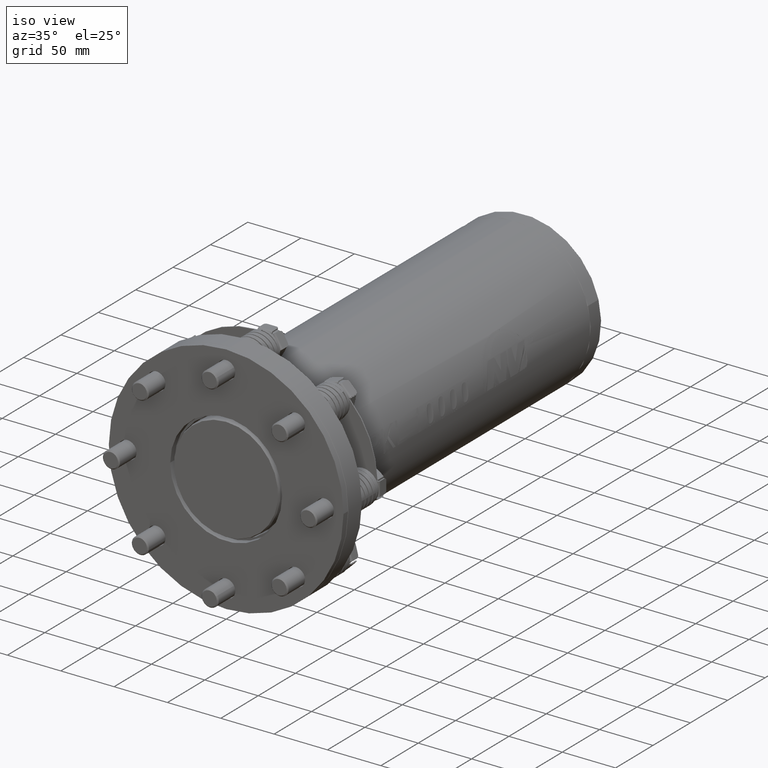
[diagram: clean part render]
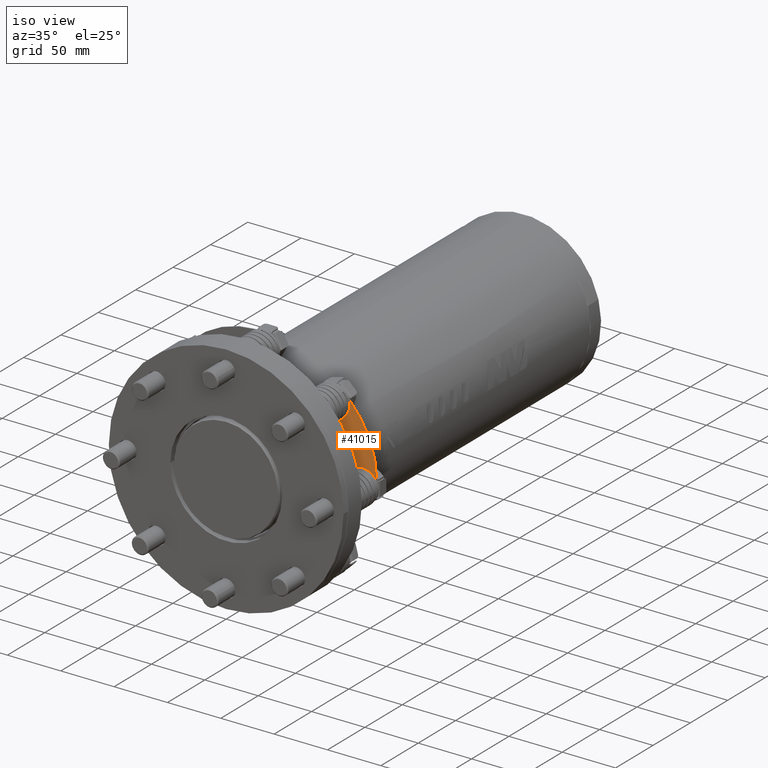
[diagram: same view with one face highlighted and labeled with its STEP entity id]
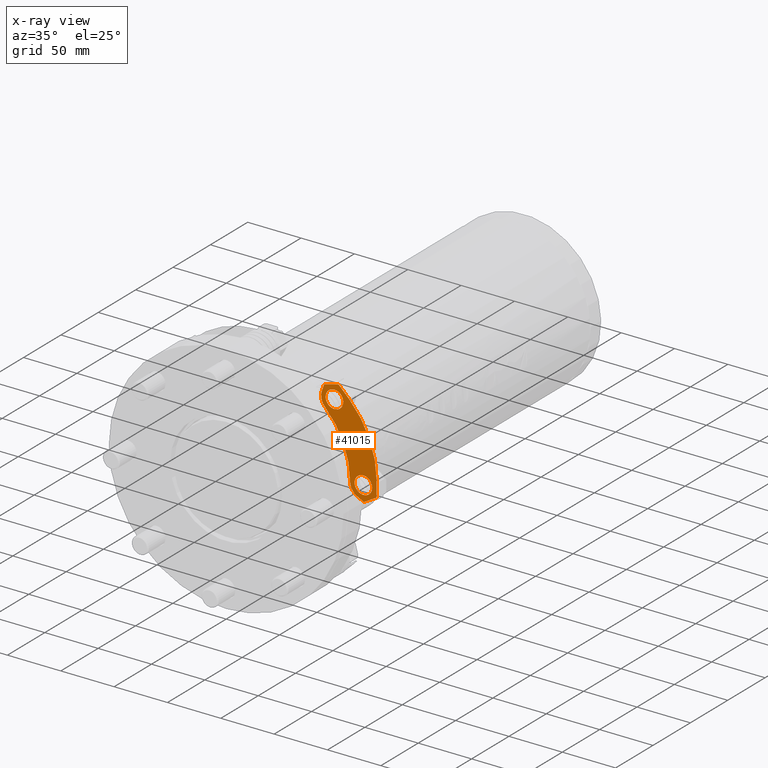
[diagram: x-ray of the same camera — body ghosted, the highlighted face saturated]
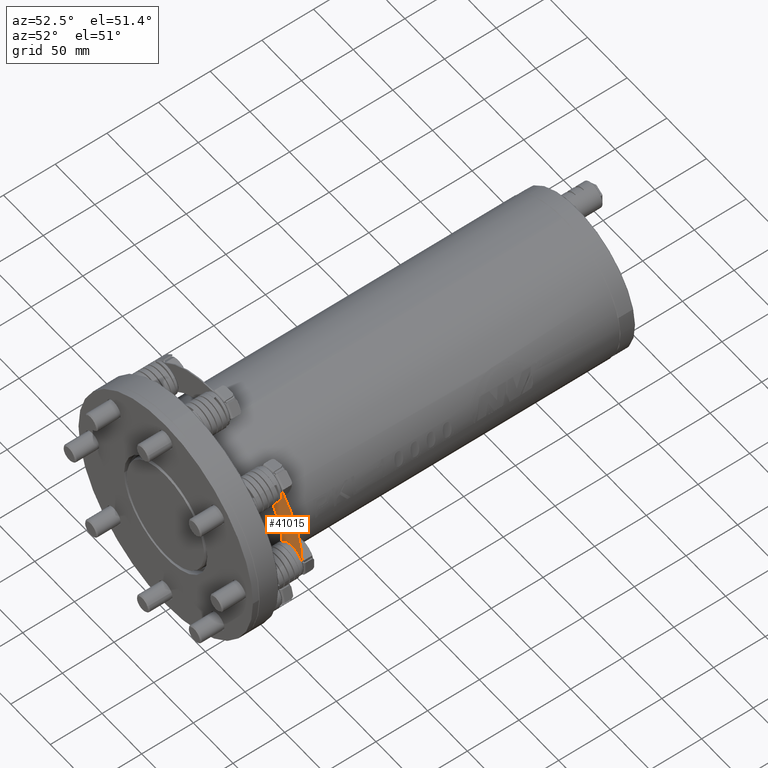
[diagram: same view with one face highlighted and labeled with its STEP entity id]
A machine part, iso view. The second image highlights one B-rep face of the part: STEP entity #41015.
The next image is the same camera in x-ray: the body ghosted, the highlighted face saturated — about 0% of this face is hidden behind the body in this view.
A second angle (auxiliary view) of the same face is appended — the face is thin or edge-on in the first view.
In plain terms, the highlighted planar face has unit normal (-0, 1, -0).
Its self-contained STEP definition (entity closure, byte-faithful):
#178 = DIRECTION ( 'NONE',  ( -2.311591932277384700E-017, 1.000000000000000000, -2.154749824397584800E-017 ) ) ;
#179 = DIRECTION ( 'NONE',  ( 0.3826834323650836800, 0.0000000000000000000, -0.9238795325112892900 ) ) ;
#204 = CARTESIAN_POINT ( 'NONE',  ( 54.71367201384040200, 51.50000000000000000, 75.79995860556410000 ) ) ;
#206 = CARTESIAN_POINT ( 'NONE',  ( 55.75884753398519700, 51.50000000000000000, 75.76301376671271700 ) ) ;
#280 = DIRECTION ( 'NONE',  ( -2.311591932277384700E-017, 1.000000000000000000, -2.154749824397584800E-017 ) ) ;
#281 = DIRECTION ( 'NONE',  ( 0.3826834323650863400, 0.0000000000000000000, -0.9238795325112881800 ) ) ;
#284 = CARTESIAN_POINT ( 'NONE',  ( 65.40737725975630200, 51.50000000000000000, 65.40737725975429800 ) ) ;
#295 = DIRECTION ( 'NONE',  ( 0.3263749025326389000, 2.791202187997129000E-017, 0.9452404048689466700 ) ) ;
#303 = CARTESIAN_POINT ( 'NONE',  ( -1.011360499757567900E-014, 51.50000000000000000, -6.745783992307669900E-013 ) ) ;
#306 = DIRECTION ( 'NONE',  ( -0.8991678069242737800, -1.135581920435109600E-017, 0.4376039933444299000 ) ) ;
#310 = CARTESIAN_POINT ( 'NONE',  ( 93.00000000000000000, 51.50000000000000000, -14.14508159514650000 ) ) ;
#315 = DIRECTION ( 'NONE',  ( 0.3826834323650861700, 0.0000000000000000000, -0.9238795325112884000 ) ) ;
#316 = DIRECTION ( 'NONE',  ( 2.311591932277384700E-017, -1.000000000000000000, 2.154749824397584800E-017 ) ) ;
#317 = CARTESIAN_POINT ( 'NONE',  ( 92.28707324825749900, 51.50000000000000000, -14.91025623905273900 ) ) ;
#326 = DIRECTION ( 'NONE',  ( -2.311591932277384700E-017, 1.000000000000000000, -2.154749824397584800E-017 ) ) ;
#328 = DIRECTION ( 'NONE',  ( 0.3826834323650836800, 0.0000000000000000000, -0.9238795325112892900 ) ) ;
#450 = DIRECTION ( 'NONE',  ( -0.3826834323650863400, 0.0000000000000000000, 0.9238795325112881800 ) ) ;
#451 = DIRECTION ( 'NONE',  ( -2.311591932277384700E-017, 1.000000000000000000, -2.154749824397584800E-017 ) ) ;
#452 = CARTESIAN_POINT ( 'NONE',  ( 92.50000000000000000, 51.50000000000000000, -4.594726882096430100E-013 ) ) ;
#527 = CARTESIAN_POINT ( 'NONE',  ( 65.40737725975630200, 51.50000000000000000, 65.40737725975429800 ) ) ;
#528 = DIRECTION ( 'NONE',  ( -2.311591932277384700E-017, 1.000000000000000000, -2.154749824397584800E-017 ) ) ;
#529 = DIRECTION ( 'NONE',  ( 0.3826834323650864000, 0.0000000000000000000, -0.9238795325112880700 ) ) ;
#6422 = AXIS2_PLACEMENT_3D ( 'NONE', #56658, #56659, #56660 ) ;
#6584 = AXIS2_PLACEMENT_3D ( 'NONE', #19920, #19934, #19935 ) ;
#6613 = AXIS2_PLACEMENT_3D ( 'NONE', #20233, #20241, #20243 ) ;
#6615 = AXIS2_PLACEMENT_3D ( 'NONE', #20270, #20279, #20281 ) ;
#6679 = AXIS2_PLACEMENT_3D ( 'NONE', #63565, #63573, #63574 ) ;
#6683 = AXIS2_PLACEMENT_3D ( 'NONE', #63572, #63580, #63581 ) ;
#12380 = CARTESIAN_POINT ( 'NONE',  ( 78.94106736492270200, 51.50000000000000000, 69.55135668425160100 ) ) ;
#12381 = DIRECTION ( 'NONE',  ( 0.7071067811865400200, 1.109041180573680000E-018, -0.7071067811865550100 ) ) ;
#12989 = CARTESIAN_POINT ( 'NONE',  ( 92.50000000000000000, 51.50000000000000000, -4.594726882096430100E-013 ) ) ;
#13058 = CARTESIAN_POINT ( 'NONE',  ( 105.9944424673496000, 51.50000000000000000, 7.639528095680289800 ) ) ;
#13067 = CARTESIAN_POINT ( 'NONE',  ( 105.0000000000000000, 51.50000000000000000, 6.639528095680269400 ) ) ;
#13069 = DIRECTION ( 'NONE',  ( 0.3826834323650836800, 0.0000000000000000000, -0.9238795325112892900 ) ) ;
#13070 = DIRECTION ( 'NONE',  ( -2.311591932277384700E-017, 1.000000000000000000, -2.154749824397584800E-017 ) ) ;
#13081 = DIRECTION ( 'NONE',  ( 2.331468351712830300E-015, -2.154749824397575000E-017, -1.000000000000000000 ) ) ;
#13095 = CARTESIAN_POINT ( 'NONE',  ( 105.5000000000000000, 51.50000000000000000, -7.505553499465619900 ) ) ;
#13106 = CARTESIAN_POINT ( 'NONE',  ( 104.5000000000000000, 51.50000000000000000, -7.505553499466000000 ) ) ;
#13122 = DIRECTION ( 'NONE',  ( -0.8660254037844383700, -3.079272248734171600E-017, -0.5000000000000003300 ) ) ;
#13125 = DIRECTION ( 'NONE',  ( 0.9659258262890709800, 2.790516639213569600E-017, 0.2588190451025105300 ) ) ;
#13126 = CARTESIAN_POINT ( 'NONE',  ( 68.58543085796449600, 51.50000000000000000, 79.19988641002331100 ) ) ;
#13136 = DIRECTION ( 'NONE',  ( 0.3826834323650836800, 0.0000000000000000000, -0.9238795325112892900 ) ) ;
#13137 = DIRECTION ( 'NONE',  ( -2.311591932277384700E-017, 1.000000000000000000, -2.154749824397584800E-017 ) ) ;
#13235 = DIRECTION ( 'NONE',  ( -0.3826834323650864000, 0.0000000000000000000, 0.9238795325112881800 ) ) ;
#13237 = DIRECTION ( 'NONE',  ( -2.311591932277384700E-017, 1.000000000000000000, -2.154749824397584800E-017 ) ) ;
#17079 = CIRCLE ( 'NONE', #61874, 8.249999999999998200 ) ;
#17082 = VECTOR ( 'NONE', #13081, 1000.000000000000000 ) ;
#17086 = LINE ( 'NONE', #13067, #17082 ) ;
#17090 = LINE ( 'NONE', #13126, #17104 ) ;
#17092 = CIRCLE ( 'NONE', #61877, 0.9999999999999981100 ) ;
#17098 = VECTOR ( 'NONE', #13122, 1000.000000000000100 ) ;
#17104 = VECTOR ( 'NONE', #13125, 1000.000000000000200 ) ;
#17106 = LINE ( 'NONE', #13106, #17098 ) ;
#17127 = CIRCLE ( 'NONE', #61880, 0.9999999999999981100 ) ;
#17313 = LINE ( 'NONE', #12380, #17325 ) ;
#17325 = VECTOR ( 'NONE', #12381, 1000.000000000000000 ) ;
#18284 = EDGE_CURVE ( 'NONE', #50345, #50361, #69263, .T. ) ;
#18293 = EDGE_CURVE ( 'NONE', #50359, #50350, #69267, .T. ) ;
#18300 = EDGE_CURVE ( 'NONE', #50350, #50361, #69268, .T. ) ;
#18315 = EDGE_CURVE ( 'NONE', #50357, #50359, #69302, .T. ) ;
#18323 = EDGE_CURVE ( 'NONE', #50364, #50352, #69298, .T. ) ;
#18328 = EDGE_CURVE ( 'NONE', #50364, #50415, #69319, .T. ) ;
#18335 = EDGE_CURVE ( 'NONE', #50352, #50357, #69323, .T. ) ;
#18400 = EDGE_CURVE ( 'NONE', #50376, #50375, #69403, .T. ) ;
#19418 = EDGE_CURVE ( 'NONE', #50380, #50378, #17079, .T. ) ;
#19422 = EDGE_CURVE ( 'NONE', #50334, #50358, #17092, .T. ) ;
#19424 = EDGE_CURVE ( 'NONE', #50334, #50333, #17086, .T. ) ;
#19430 = EDGE_CURVE ( 'NONE', #50448, #50415, #17106, .T. ) ;
#19433 = EDGE_CURVE ( 'NONE', #50345, #50103, #17090, .T. ) ;
#19435 = EDGE_CURVE ( 'NONE', #50448, #50333, #17127, .T. ) ;
#19543 = EDGE_CURVE ( 'NONE', #50340, #50351, #17313, .T. ) ;
#19920 = CARTESIAN_POINT ( 'NONE',  ( 69.29253763915129100, 51.50000000000000000, 79.90699319120959400 ) ) ;
#19934 = DIRECTION ( 'NONE',  ( -2.311591932277384700E-017, 1.000000000000000000, -2.154749824397584800E-017 ) ) ;
#19935 = DIRECTION ( 'NONE',  ( 0.3826834323650836800, 0.0000000000000000000, -0.9238795325112892900 ) ) ;
#20233 = CARTESIAN_POINT ( 'NONE',  ( 80.35135115827199600, 51.50000000000000000, 69.54742691522780300 ) ) ;
#20241 = DIRECTION ( 'NONE',  ( -2.311591932277384700E-017, 1.000000000000000000, -2.154749824397584800E-017 ) ) ;
#20243 = DIRECTION ( 'NONE',  ( 0.3826834323650836800, 0.0000000000000000000, -0.9238795325112892900 ) ) ;
#20270 = CARTESIAN_POINT ( 'NONE',  ( 16.02923877634980000, 51.50000000000000000, 6.639528095680050000 ) ) ;
#20279 = DIRECTION ( 'NONE',  ( -2.311591932277384700E-017, 1.000000000000000000, -2.154749824397584800E-017 ) ) ;
#20281 = DIRECTION ( 'NONE',  ( 0.3826834323650861700, 0.0000000000000000000, -0.9238795325112884000 ) ) ;
#29029 = AXIS2_PLACEMENT_3D ( 'NONE', #452, #451, #450 ) ;
#29075 = AXIS2_PLACEMENT_3D ( 'NONE', #284, #280, #281 ) ;
#29087 = AXIS2_PLACEMENT_3D ( 'NONE', #317, #326, #328 ) ;
#29091 = AXIS2_PLACEMENT_3D ( 'NONE', #303, #316, #315 ) ;
#29103 = AXIS2_PLACEMENT_3D ( 'NONE', #204, #178, #179 ) ;
#32832 = EDGE_LOOP ( 'NONE', ( #38262, #38264 ) ) ;
#36630 = FACE_OUTER_BOUND ( 'NONE', #63142, .T. ) ;
#36632 = FACE_BOUND ( 'NONE', #32832, .T. ) ;
#36634 = FACE_BOUND ( 'NONE', #63141, .T. ) ;
#37560 = ORIENTED_EDGE ( 'NONE', *, *, #18328, .T. ) ;
#37563 = ORIENTED_EDGE ( 'NONE', *, *, #56138, .T. ) ;
#37565 = ORIENTED_EDGE ( 'NONE', *, *, #19422, .T. ) ;
#37567 = ORIENTED_EDGE ( 'NONE', *, *, #19424, .F. ) ;
#37569 = ORIENTED_EDGE ( 'NONE', *, *, #19435, .T. ) ;
#37571 = ORIENTED_EDGE ( 'NONE', *, *, #19430, .F. ) ;
#38168 = ORIENTED_EDGE ( 'NONE', *, *, #18335, .F. ) ;
#38170 = ORIENTED_EDGE ( 'NONE', *, *, #18315, .F. ) ;
#38172 = ORIENTED_EDGE ( 'NONE', *, *, #18300, .F. ) ;
#38174 = ORIENTED_EDGE ( 'NONE', *, *, #18293, .F. ) ;
#38177 = ORIENTED_EDGE ( 'NONE', *, *, #19433, .F. ) ;
#38179 = ORIENTED_EDGE ( 'NONE', *, *, #18284, .T. ) ;
#38188 = ORIENTED_EDGE ( 'NONE', *, *, #19543, .F. ) ;
#38262 = ORIENTED_EDGE ( 'NONE', *, *, #56130, .T. ) ;
#38264 = ORIENTED_EDGE ( 'NONE', *, *, #18400, .T. ) ;
#38266 = ORIENTED_EDGE ( 'NONE', *, *, #55695, .F. ) ;
#38268 = ORIENTED_EDGE ( 'NONE', *, *, #55683, .T. ) ;
#38270 = ORIENTED_EDGE ( 'NONE', *, *, #18323, .F. ) ;
#38273 = ORIENTED_EDGE ( 'NONE', *, *, #55585, .T. ) ;
#38279 = ORIENTED_EDGE ( 'NONE', *, *, #19418, .T. ) ;
#41015 = ADVANCED_FACE ( 'NONE', ( #36632, #36630, #36634 ), #56657, .F. ) ;
#50103 = VERTEX_POINT ( 'NONE', #72077 ) ;
#50333 = VERTEX_POINT ( 'NONE', #72525 ) ;
#50334 = VERTEX_POINT ( 'NONE', #72527 ) ;
#50340 = VERTEX_POINT ( 'NONE', #72539 ) ;
#50345 = VERTEX_POINT ( 'NONE', #72548 ) ;
#50347 = VERTEX_POINT ( 'NONE', #72552 ) ;
#50350 = VERTEX_POINT ( 'NONE', #72558 ) ;
#50351 = VERTEX_POINT ( 'NONE', #72560 ) ;
#50352 = VERTEX_POINT ( 'NONE', #72562 ) ;
#50357 = VERTEX_POINT ( 'NONE', #72572 ) ;
#50358 = VERTEX_POINT ( 'NONE', #72574 ) ;
#50359 = VERTEX_POINT ( 'NONE', #72576 ) ;
#50361 = VERTEX_POINT ( 'NONE', #72580 ) ;
#50364 = VERTEX_POINT ( 'NONE', #72586 ) ;
#50375 = VERTEX_POINT ( 'NONE', #72608 ) ;
#50376 = VERTEX_POINT ( 'NONE', #72610 ) ;
#50378 = VERTEX_POINT ( 'NONE', #72614 ) ;
#50380 = VERTEX_POINT ( 'NONE', #72618 ) ;
#50415 = VERTEX_POINT ( 'NONE', #72684 ) ;
#50448 = VERTEX_POINT ( 'NONE', #72748 ) ;
#53408 = AXIS2_PLACEMENT_3D ( 'NONE', #527, #528, #529 ) ;
#55585 = EDGE_CURVE ( 'NONE', #50340, #50103, #74462, .T. ) ;
#55683 = EDGE_CURVE ( 'NONE', #50347, #50351, #74539, .T. ) ;
#55695 = EDGE_CURVE ( 'NONE', #50347, #50358, #74543, .T. ) ;
#56130 = EDGE_CURVE ( 'NONE', #50375, #50376, #74745, .T. ) ;
#56138 = EDGE_CURVE ( 'NONE', #50378, #50380, #74749, .T. ) ;
#56657 = PLANE ( 'NONE',  #6422 ) ;
#56658 = CARTESIAN_POINT ( 'NONE',  ( 16.02923877634980000, 51.50000000000000000, 6.639528095680050000 ) ) ;
#56659 = DIRECTION ( 'NONE',  ( -2.311591932277385400E-017, 1.000000000000000000, -2.154749824397583300E-017 ) ) ;
#56660 = DIRECTION ( 'NONE',  ( 0.3826834323650861200, -1.106121325571868300E-017, -0.9238795325112882900 ) ) ;
#61874 = AXIS2_PLACEMENT_3D ( 'NONE', #12989, #13237, #13235 ) ;
#61877 = AXIS2_PLACEMENT_3D ( 'NONE', #13058, #13070, #13069 ) ;
#61880 = AXIS2_PLACEMENT_3D ( 'NONE', #13095, #13137, #13136 ) ;
#63141 = EDGE_LOOP ( 'NONE', ( #37563, #38279 ) ) ;
#63142 = EDGE_LOOP ( 'NONE', ( #38266, #38268, #38188, #38273, #38177, #38179, #38172, #38174, #38170, #38168, #38270, #37560, #37571, #37569, #37567, #37565 ) ) ;
#63565 = CARTESIAN_POINT ( 'NONE',  ( 65.40737725975630200, 51.50000000000000000, 65.40737725975429800 ) ) ;
#63572 = CARTESIAN_POINT ( 'NONE',  ( 92.50000000000000000, 51.50000000000000000, -4.594726882096430100E-013 ) ) ;
#63573 = DIRECTION ( 'NONE',  ( -2.311591932277384700E-017, 1.000000000000000000, -2.154749824397584800E-017 ) ) ;
#63574 = DIRECTION ( 'NONE',  ( 0.3826834323650864000, 0.0000000000000000000, -0.9238795325112880700 ) ) ;
#63580 = DIRECTION ( 'NONE',  ( -2.311591932277384700E-017, 1.000000000000000000, -2.154749824397584800E-017 ) ) ;
#63581 = DIRECTION ( 'NONE',  ( -0.3826834323650864000, 0.0000000000000000000, 0.9238795325112881800 ) ) ;
#69263 = CIRCLE ( 'NONE', #29103, 0.9999999999999981100 ) ;
#69267 = CIRCLE ( 'NONE', #29075, 12.49999999999999800 ) ;
#69268 = LINE ( 'NONE', #206, #69272 ) ;
#69272 = VECTOR ( 'NONE', #295, 1000.000000000000100 ) ;
#69298 = LINE ( 'NONE', #310, #69311 ) ;
#69302 = CIRCLE ( 'NONE', #29091, 79.99999999999997200 ) ;
#69311 = VECTOR ( 'NONE', #306, 1000.000000000000000 ) ;
#69319 = CIRCLE ( 'NONE', #29087, 0.9999999999999981100 ) ;
#69323 = CIRCLE ( 'NONE', #29029, 12.49999999999999800 ) ;
#69403 = CIRCLE ( 'NONE', #53408, 8.249999999999998200 ) ;
#72077 = CARTESIAN_POINT ( 'NONE',  ( 68.58543085796449600, 51.50000000000000000, 79.19988641002339600 ) ) ;
#72525 = CARTESIAN_POINT ( 'NONE',  ( 105.0000000000000000, 51.50000000000000000, -6.639528095681150400 ) ) ;
#72527 = CARTESIAN_POINT ( 'NONE',  ( 105.0000000000000000, 51.50000000000000000, 7.534246667423209600 ) ) ;
#72539 = CARTESIAN_POINT ( 'NONE',  ( 69.55135668425390300, 51.50000000000000000, 78.94106736492049900 ) ) ;
#72548 = CARTESIAN_POINT ( 'NONE',  ( 55.71245225468309300, 51.50000000000000000, 75.75058218909110500 ) ) ;
#72552 = CARTESIAN_POINT ( 'NONE',  ( 79.63642876007159500, 51.50000000000000000, 68.84822310763550500 ) ) ;
#72558 = CARTESIAN_POINT ( 'NONE',  ( 53.59187219889449900, 51.50000000000000000, 69.48706354141231100 ) ) ;
#72560 = CARTESIAN_POINT ( 'NONE',  ( 79.57372893425549900, 51.50000000000000000, 68.91869511491870500 ) ) ;
#72562 = CARTESIAN_POINT ( 'NONE',  ( 87.02995008319459200, 51.50000000000000000, -11.23959758655388100 ) ) ;
#72572 = CARTESIAN_POINT ( 'NONE',  ( 80.00000000000000000, 51.50000000000000000, -4.560032412576900000E-013 ) ) ;
#72574 = CARTESIAN_POINT ( 'NONE',  ( 104.9945042377800100, 51.50000000000000000, 7.628413373670600400 ) ) ;
#72576 = CARTESIAN_POINT ( 'NONE',  ( 56.56854249492440100, 51.50000000000000000, 56.56854249492259600 ) ) ;
#72580 = CARTESIAN_POINT ( 'NONE',  ( 55.65891241870929900, 51.50000000000000000, 75.47358370303150800 ) ) ;
#72586 = CARTESIAN_POINT ( 'NONE',  ( 92.72467724160189600, 51.50000000000000000, -14.01108843212848000 ) ) ;
#72608 = CARTESIAN_POINT ( 'NONE',  ( 62.25023894274433900, 51.50000000000000000, 73.02938340297244200 ) ) ;
#72610 = CARTESIAN_POINT ( 'NONE',  ( 68.56451557676825800, 51.50000000000000000, 57.78537111653617600 ) ) ;
#72614 = CARTESIAN_POINT ( 'NONE',  ( 89.34286168298803000, 51.50000000000000000, 7.622006143217666900 ) ) ;
#72618 = CARTESIAN_POINT ( 'NONE',  ( 95.65713831701195600, 51.50000000000000000, -7.622006143218587900 ) ) ;
#72684 = CARTESIAN_POINT ( 'NONE',  ( 92.95840313055380500, 51.50000000000000000, -14.16909755891894000 ) ) ;
#72748 = CARTESIAN_POINT ( 'NONE',  ( 104.5000000000000000, 51.50000000000000000, -7.505553499466000000 ) ) ;
#74462 = CIRCLE ( 'NONE', #6584, 0.9999999999999981100 ) ;
#74539 = CIRCLE ( 'NONE', #6613, 0.9999999999999981100 ) ;
#74543 = CIRCLE ( 'NONE', #6615, 88.97076122365015700 ) ;
#74745 = CIRCLE ( 'NONE', #6679, 8.249999999999998200 ) ;
#74749 = CIRCLE ( 'NONE', #6683, 8.249999999999998200 ) ;